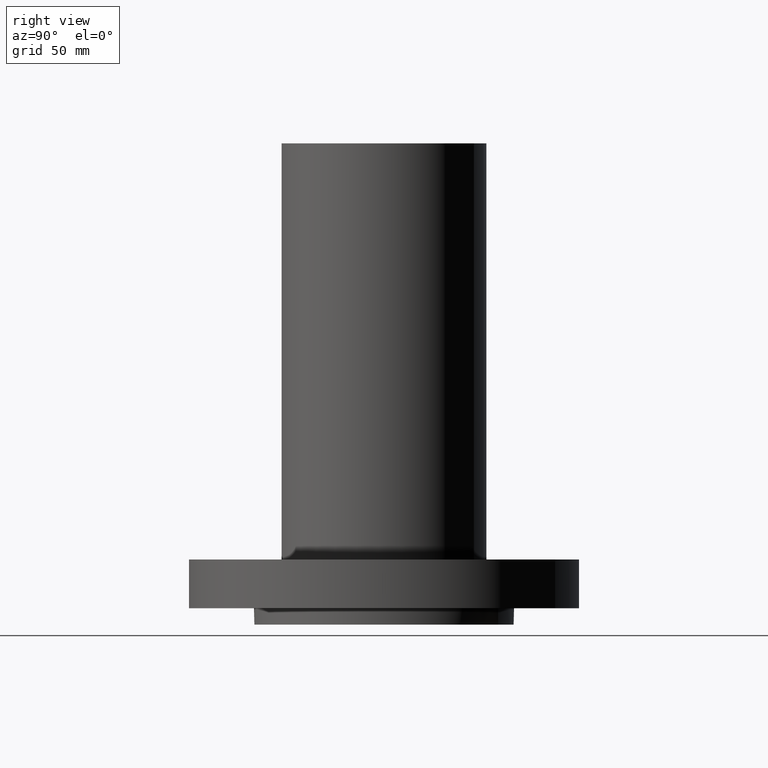
[diagram: clean part render]
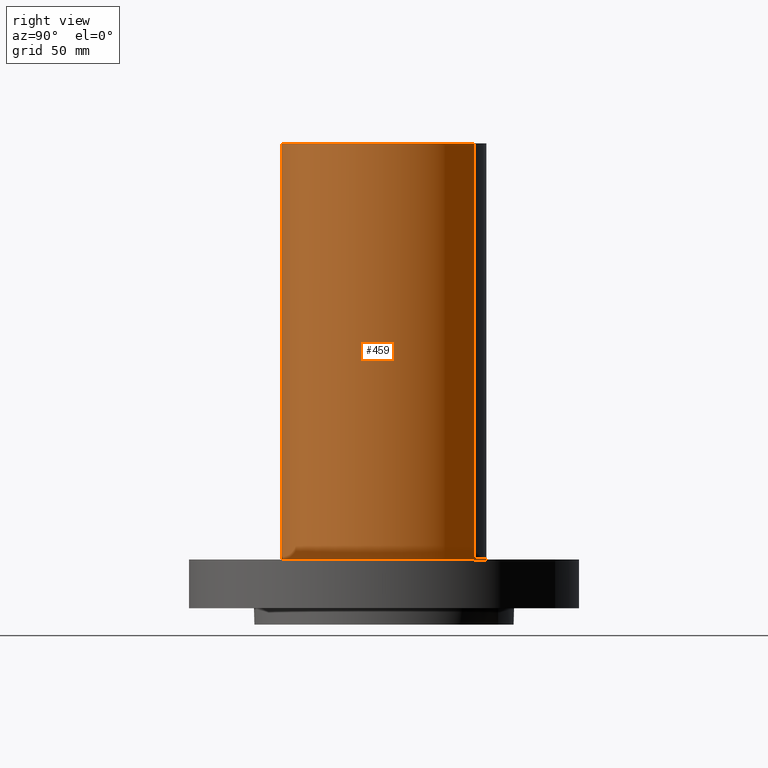
[diagram: same view with one face highlighted and labeled with its STEP entity id]
A machine part, right view. The second image highlights one B-rep face of the part: STEP entity #459.
In plain terms, the highlighted cylindrical surface (partial cylindrical patch) has radius 50.038 mm, axis along (0, 0, -1).
Its self-contained STEP definition (entity closure, byte-faithful):
#423=AXIS2_PLACEMENT_3D('Cylinder Axis2P3D',#420,#421,#422) ;
#427=AXIS2_PLACEMENT_3D('Circle Axis2P3D',#425,#426,$) ;
#443=AXIS2_PLACEMENT_3D('Circle Axis2P3D',#441,#442,$) ;
#420=CARTESIAN_POINT('Axis2P3D Location',(0.,0.,4.31225000002)) ;
#425=CARTESIAN_POINT('Axis2P3D Location',(0.,0.,0.937500000004)) ;
#429=CARTESIAN_POINT('Vertex',(0.944468311054,1.72883764693,0.937500000004)) ;
#431=CARTESIAN_POINT('Vertex',(-0.944468311054,-1.72883764693,0.937500000004)) ;
#434=CARTESIAN_POINT('Line Origine',(0.944468311054,1.72883764693,4.93750000002)) ;
#438=CARTESIAN_POINT('Vertex',(0.944468311054,1.72883764693,8.93750000004)) ;
#441=CARTESIAN_POINT('Axis2P3D Location',(0.,0.,8.93750000004)) ;
#445=CARTESIAN_POINT('Vertex',(-0.944468311054,-1.72883764693,8.93750000004)) ;
#448=CARTESIAN_POINT('Line Origine',(-0.944468311054,-1.72883764693,4.93750000002)) ;
#421=DIRECTION('Axis2P3D Direction',(0.,0.,-0.0393700787402)) ;
#422=DIRECTION('Axis2P3D XDirection',(-0.0188750212049,-0.0345504945626,0.)) ;
#426=DIRECTION('Axis2P3D Direction',(0.,0.,-0.0393700787402)) ;
#435=DIRECTION('Vector Direction',(0.,0.,-0.0393700787402)) ;
#442=DIRECTION('Axis2P3D Direction',(0.,0.,-0.0393700787402)) ;
#449=DIRECTION('Vector Direction',(0.,0.,-0.0393700787402)) ;
#436=VECTOR('Line Direction',#435,0.0393700787402) ;
#450=VECTOR('Line Direction',#449,0.0393700787402) ;
#454=ORIENTED_EDGE('',*,*,#433,.F.) ;
#455=ORIENTED_EDGE('',*,*,#440,.T.) ;
#456=ORIENTED_EDGE('',*,*,#447,.T.) ;
#457=ORIENTED_EDGE('',*,*,#452,.F.) ;
#459=ADVANCED_FACE('PartBody',(#458),#424,.T.) ;
#428=CIRCLE('generated circle',#427,1.97000000001) ;
#444=CIRCLE('generated circle',#443,1.97000000001) ;
#424=CYLINDRICAL_SURFACE('generated cylinder',#423,1.97000000001) ;
#433=EDGE_CURVE('',#430,#432,#428,.T.) ;
#440=EDGE_CURVE('',#430,#439,#437,.F.) ;
#447=EDGE_CURVE('',#439,#446,#444,.T.) ;
#452=EDGE_CURVE('',#432,#446,#451,.F.) ;
#453=EDGE_LOOP('',(#454,#455,#456,#457)) ;
#458=FACE_OUTER_BOUND('',#453,.T.) ;
#437=LINE('Line',#434,#436) ;
#451=LINE('Line',#448,#450) ;
#430=VERTEX_POINT('',#429) ;
#432=VERTEX_POINT('',#431) ;
#439=VERTEX_POINT('',#438) ;
#446=VERTEX_POINT('',#445) ;